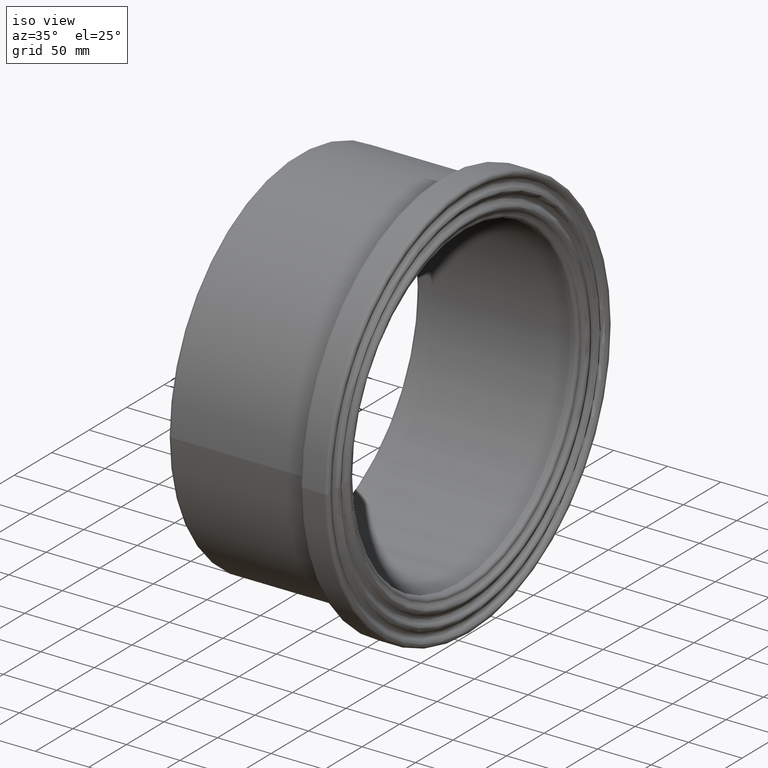
[diagram: clean part render]
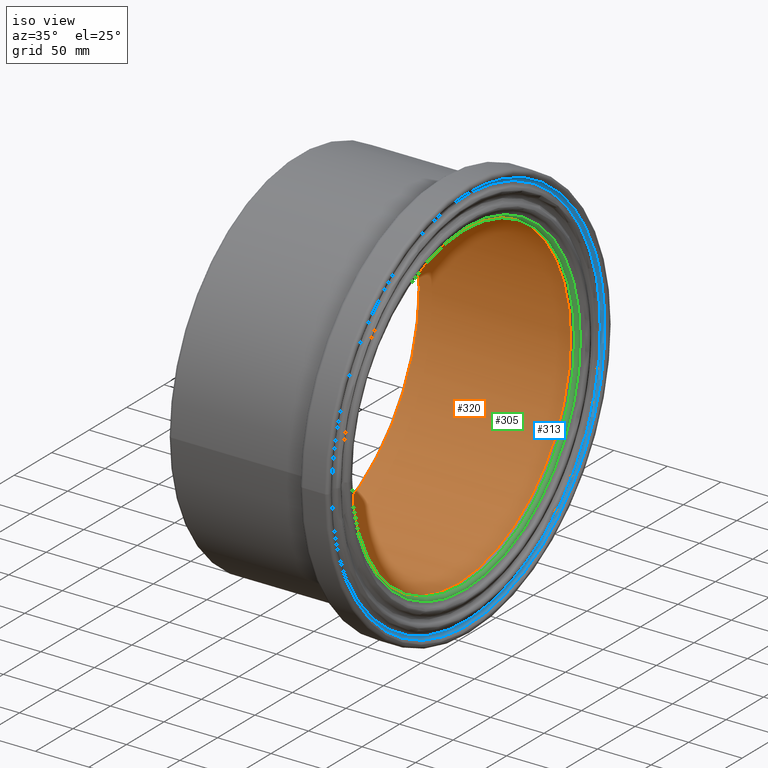
[diagram: same view with three faces highlighted in distinct colors, each labeled with its STEP entity id]
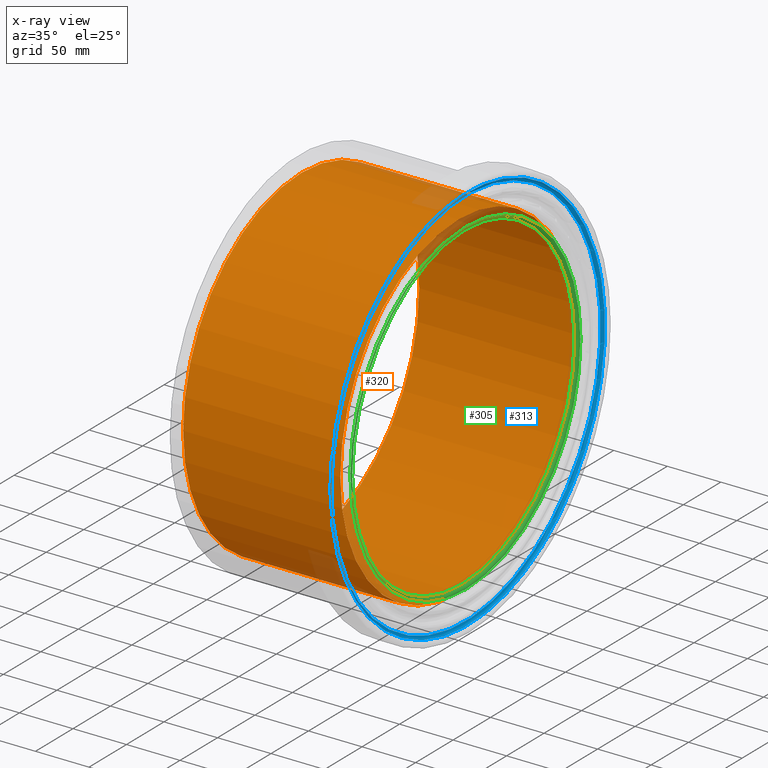
[diagram: x-ray of the same camera — body ghosted, the three highlighted faces saturated]
A machine part, iso view with three faces highlighted in distinct colors.
The next image is the same camera in x-ray (body ghosted, the three faces saturated) — at least one of them is partly hidden behind the body in this view.
Their STEP definitions:

[orange] entity #320 — the highlighted cylindrical surface (bore or boss wall) has radius 157.5 mm, axis along (-1, 0, 0).
#21=CYLINDRICAL_SURFACE('',#361,157.5);
#55=FACE_BOUND('',#122,.T.);
#81=FACE_OUTER_BOUND('',#121,.T.);
#121=EDGE_LOOP('',(#265));
#122=EDGE_LOOP('',(#266));
#157=CIRCLE('',#358,157.5);
#159=CIRCLE('',#362,157.5);
#184=VERTEX_POINT('',#1983);
#186=VERTEX_POINT('',#1989);
#215=EDGE_CURVE('',#184,#184,#157,.T.);
#217=EDGE_CURVE('',#186,#186,#159,.T.);
#265=ORIENTED_EDGE('',*,*,#217,.F.);
#266=ORIENTED_EDGE('',*,*,#215,.F.);
#320=ADVANCED_FACE('',(#81,#55),#21,.F.);
#358=AXIS2_PLACEMENT_3D('',#1984,#429,#430);
#361=AXIS2_PLACEMENT_3D('',#1988,#435,#436);
#362=AXIS2_PLACEMENT_3D('',#1990,#437,#438);
#429=DIRECTION('center_axis',(1.,0.,0.));
#430=DIRECTION('ref_axis',(0.,1.,6.12323399573677E-17));
#435=DIRECTION('center_axis',(-1.,0.,0.));
#436=DIRECTION('ref_axis',(0.,-1.,0.));
#437=DIRECTION('center_axis',(-1.,0.,0.));
#438=DIRECTION('ref_axis',(0.,0.,1.));
#1983=CARTESIAN_POINT('',(3.15,-157.5,-2.89322806298562E-14));
#1984=CARTESIAN_POINT('Origin',(3.15,0.,0.));
#1988=CARTESIAN_POINT('Origin',(75.,0.,0.));
#1989=CARTESIAN_POINT('',(150.,-157.5,0.));
#1990=CARTESIAN_POINT('Origin',(150.,0.,0.));

[blue] entity #313 — the highlighted toroidal blend (fillet) surface has major radius 179.704 mm and minor (blend) radius 3.15 mm.
#27=B_SPLINE_CURVE_WITH_KNOTS('',3,(#1371,#1372,#1373,#1374,#1375,#1376,
#1377,#1378,#1379,#1380,#1381,#1382,#1383,#1384,#1385,#1386,#1387,#1388,
#1389,#1390,#1391,#1392,#1393,#1394,#1395,#1396,#1397,#1398,#1399,#1400,
#1401,#1402,#1403,#1404,#1405,#1406,#1407,#1408,#1409,#1410,#1411,#1412,
#1413,#1414,#1415,#1416,#1417,#1418,#1419,#1420,#1421,#1422,#1423,#1424,
#1425,#1426,#1427,#1428,#1429,#1430,#1431,#1432,#1433,#1434,#1435,#1436,
#1437,#1438,#1439),.UNSPECIFIED.,.T.,.F.,(4,1,1,1,1,1,1,1,1,1,1,1,1,1,1,
1,1,1,1,1,1,1,1,1,1,1,1,1,1,1,1,1,1,1,1,1,1,1,1,1,1,1,1,1,1,1,1,1,1,1,1,
1,1,1,1,1,1,1,1,1,1,1,1,1,1,1,4),(-57.9542232891471,-55.8844296002489,-53.8146359113508,
-51.7448422224527,-49.6750485335546,-47.6052548446565,-45.5354611557584,
-43.4656674668603,-41.3958737779622,-38.6361488594314,-37.256286400166,
-35.8764239409006,-33.1166990223697,-30.3569741038389,-27.5972491853081,
-24.8375242667773,-22.0777993482465,-20.6979368889811,-19.3180744297157,
-16.5583495111849,-15.1784870519195,-13.7986245926541,-11.0388996741232,
-8.27917475559244,-5.51944983706162,-2.75972491853081,-1.37986245926541,
1.37986245926541,2.75972491853081,4.82951860742892,8.27917475559244,8.79662317781696,
10.3489684444905,12.4187621333887,14.4885558222868,14.747280033399,15.5234526667358,
16.5583495111849,20.6979368889811,20.9566611000934,21.7328337334301,22.7677305778792,
24.8375242667773,25.8724211112264,28.459663222349,28.9771116445735,31.0469053334716,
33.1166990223697,33.2891818297779,33.8066302520024,35.8764239409006,38.6361488594314,
40.3609769335131,41.3958737779622,41.9133222001867,43.4656674668603,44.2418401001971,
45.5354611557584,49.6750485335546,50.1924969557791,50.9686695891159,51.7448422224527,
53.8146359113508,55.8844296002489,57.4367748669225,57.8248611835909,57.9542232891471),
 .UNSPECIFIED.);
#49=FACE_BOUND('',#109,.T.);
#74=FACE_OUTER_BOUND('',#108,.T.);
#108=EDGE_LOOP('',(#249));
#109=EDGE_LOOP('',(#250));
#152=CIRCLE('',#349,179.704166666667);
#176=VERTEX_POINT('',#1369);
#178=VERTEX_POINT('',#1513);
#205=EDGE_CURVE('',#176,#176,#27,.T.);
#208=EDGE_CURVE('',#178,#178,#152,.T.);
#249=ORIENTED_EDGE('',*,*,#205,.F.);
#250=ORIENTED_EDGE('',*,*,#208,.T.);
#297=TOROIDAL_SURFACE('',#348,179.704166666667,3.15);
#313=ADVANCED_FACE('',(#74,#49),#297,.F.);
#348=AXIS2_PLACEMENT_3D('',#1512,#409,#410);
#349=AXIS2_PLACEMENT_3D('',#1514,#411,#412);
#409=DIRECTION('center_axis',(-1.,0.,0.));
#410=DIRECTION('ref_axis',(0.,0.,1.));
#411=DIRECTION('center_axis',(-1.,0.,0.));
#412=DIRECTION('ref_axis',(0.,1.,6.12323399573677E-17));
#1369=CARTESIAN_POINT('',(158.975,-182.646363265506,-0.148277646981388));
#1371=CARTESIAN_POINT('Ctrl Pts',(158.975,-182.646420829565,-0.150142079393005));
#1372=CARTESIAN_POINT('Ctrl Pts',(158.975,-182.652531576686,6.64632091384645));
#1373=CARTESIAN_POINT('Ctrl Pts',(158.975,-181.903941513344,20.2575136566611));
#1374=CARTESIAN_POINT('Ctrl Pts',(158.975,-178.48387979463,40.5700133823907));
#1375=CARTESIAN_POINT('Ctrl Pts',(158.975,-172.781844535511,60.3796458358005));
#1376=CARTESIAN_POINT('Ctrl Pts',(158.975,-164.984587012962,79.2373493955944));
#1377=CARTESIAN_POINT('Ctrl Pts',(158.975,-155.082768530979,97.2158005869448));
#1378=CARTESIAN_POINT('Ctrl Pts',(158.975,-143.147418610661,114.060155987901));
#1379=CARTESIAN_POINT('Ctrl Pts',(158.975,-129.491999298843,129.345819859714));
#1380=CARTESIAN_POINT('Ctrl Pts',(158.975,-112.582786412891,144.487400512383));
#1381=CARTESIAN_POINT('Ctrl Pts',(158.975,-95.521324484014,156.152002784864));
#1382=CARTESIAN_POINT('Ctrl Pts',(158.975,-79.3650152744306,164.689105372462));
#1383=CARTESIAN_POINT('Ctrl Pts',(158.975,-62.7440193576973,171.949021837176));
#1384=CARTESIAN_POINT('Ctrl Pts',(158.975,-40.954706080513,178.706036505378));
#1385=CARTESIAN_POINT('Ctrl Pts',(158.975,-13.6816229318022,182.817634841771));
#1386=CARTESIAN_POINT('Ctrl Pts',(158.975,13.5265563390263,182.819476714045));
#1387=CARTESIAN_POINT('Ctrl Pts',(158.975,40.7390035758414,178.758966159176));
#1388=CARTESIAN_POINT('Ctrl Pts',(158.975,62.6174506527248,171.994221476734));
#1389=CARTESIAN_POINT('Ctrl Pts',(158.975,79.2136346662028,164.762745087149));
#1390=CARTESIAN_POINT('Ctrl Pts',(158.975,95.3610610746418,156.244786101084));
#1391=CARTESIAN_POINT('Ctrl Pts',(158.975,110.520459225375,145.917208653634));
#1392=CARTESIAN_POINT('Ctrl Pts',(158.975,124.353293361133,134.00554796705));
#1393=CARTESIAN_POINT('Ctrl Pts',(158.975,137.156341469903,121.209207554159));
#1394=CARTESIAN_POINT('Ctrl Pts',(158.975,151.458439001939,103.314736348958));
#1395=CARTESIAN_POINT('Ctrl Pts',(158.975,165.194567861832,79.4873055626872));
#1396=CARTESIAN_POINT('Ctrl Pts',(158.975,175.144531428317,54.1508737039513));
#1397=CARTESIAN_POINT('Ctrl Pts',(158.975,180.277055807904,31.7603380658313));
#1398=CARTESIAN_POINT('Ctrl Pts',(158.975,182.813798700342,9.07044064965383));
#1399=CARTESIAN_POINT('Ctrl Pts',(158.975,182.817411748174,-9.07337493071986));
#1400=CARTESIAN_POINT('Ctrl Pts',(158.975,180.53345561862,-29.413646729624));
#1401=CARTESIAN_POINT('Ctrl Pts',(158.975,175.922109411444,-51.6100683929234));
#1402=CARTESIAN_POINT('Ctrl Pts',(158.975,169.004624700982,-70.3479059247484));
#1403=CARTESIAN_POINT('Ctrl Pts',(158.975,160.942296387414,-86.569986672021));
#1404=CARTESIAN_POINT('Ctrl Pts',(158.975,154.183098190943,-98.4709562608166));
#1405=CARTESIAN_POINT('Ctrl Pts',(158.975,143.277902037872,-113.896142693736));
#1406=CARTESIAN_POINT('Ctrl Pts',(158.975,133.582588883614,-124.774144283534));
#1407=CARTESIAN_POINT('Ctrl Pts',(158.975,126.314329887909,-131.961575772938));
#1408=CARTESIAN_POINT('Ctrl Pts',(158.975,121.35416370926,-136.598250364163));
#1409=CARTESIAN_POINT('Ctrl Pts',(158.975,106.416847282508,-149.269923678156));
#1410=CARTESIAN_POINT('Ctrl Pts',(158.975,91.0502035631779,-158.968566547915));
#1411=CARTESIAN_POINT('Ctrl Pts',(158.975,75.6082927619935,-166.289985885128));
#1412=CARTESIAN_POINT('Ctrl Pts',(158.975,69.3540217664295,-169.045927517638));
#1413=CARTESIAN_POINT('Ctrl Pts',(158.975,57.4679338225047,-173.603198884299));
#1414=CARTESIAN_POINT('Ctrl Pts',(158.975,44.3317780189964,-177.41629155026));
#1415=CARTESIAN_POINT('Ctrl Pts',(158.975,25.8443693505,-181.126424846863));
#1416=CARTESIAN_POINT('Ctrl Pts',(158.975,12.1576187732909,-182.489727954707));
#1417=CARTESIAN_POINT('Ctrl Pts',(158.975,-4.88558338719633,-182.746805209071));
#1418=CARTESIAN_POINT('Ctrl Pts',(158.975,-20.15664592807,-181.914950297632));
#1419=CARTESIAN_POINT('Ctrl Pts',(158.975,-34.2788541286663,-179.545236753741));
#1420=CARTESIAN_POINT('Ctrl Pts',(158.975,-43.1761941071095,-177.48127603563));
#1421=CARTESIAN_POINT('Ctrl Pts',(158.975,-52.0475573365175,-175.2516160001));
#1422=CARTESIAN_POINT('Ctrl Pts',(158.975,-68.8739165985218,-169.725621570418));
#1423=CARTESIAN_POINT('Ctrl Pts',(158.975,-88.2934252127541,-160.407681085464));
#1424=CARTESIAN_POINT('Ctrl Pts',(158.975,-103.739168325803,-150.542205797391));
#1425=CARTESIAN_POINT('Ctrl Pts',(158.975,-112.413209259645,-144.024655156208));
#1426=CARTESIAN_POINT('Ctrl Pts',(158.975,-120.364206694927,-137.515705917837));
#1427=CARTESIAN_POINT('Ctrl Pts',(158.975,-127.295992901674,-131.153173126707));
#1428=CARTESIAN_POINT('Ctrl Pts',(158.975,-135.529369265,-122.582176035383));
#1429=CARTESIAN_POINT('Ctrl Pts',(158.975,-148.865459451375,-107.07016139512));
#1430=CARTESIAN_POINT('Ctrl Pts',(158.975,-159.477544651721,-90.2338901257638));
#1431=CARTESIAN_POINT('Ctrl Pts',(158.975,-167.034318835411,-73.976919183321));
#1432=CARTESIAN_POINT('Ctrl Pts',(158.975,-169.692617240667,-67.7037470160829));
#1433=CARTESIAN_POINT('Ctrl Pts',(158.975,-173.864143720755,-56.5763370381404));
#1434=CARTESIAN_POINT('Ctrl Pts',(158.975,-178.394573062913,-40.9498773705393));
#1435=CARTESIAN_POINT('Ctrl Pts',(158.975,-181.576553397943,-22.322342514596));
#1436=CARTESIAN_POINT('Ctrl Pts',(158.975,-182.514416008302,-9.09207193159899));
#1437=CARTESIAN_POINT('Ctrl Pts',(158.975,-182.638567380796,-2.27389405574646));
#1438=CARTESIAN_POINT('Ctrl Pts',(158.975,-182.64603890787,-0.574921016470475));
#1439=CARTESIAN_POINT('Ctrl Pts',(158.975,-182.646420829565,-0.150142079393005));
#1512=CARTESIAN_POINT('Origin',(160.1,0.,0.));
#1513=CARTESIAN_POINT('',(156.95,-179.704166666667,1.10037066250888E-14));
#1514=CARTESIAN_POINT('Origin',(156.95,0.,0.));

[green] entity #305 — the highlighted toroidal blend (fillet) surface has major radius 152.775 mm and minor (blend) radius 3.15 mm.
#43=FACE_BOUND('',#95,.T.);
#66=FACE_OUTER_BOUND('',#94,.T.);
#94=EDGE_LOOP('',(#229));
#95=EDGE_LOOP('',(#230));
#145=CIRCLE('',#336,149.625);
#146=CIRCLE('',#337,152.775);
#168=VERTEX_POINT('',#477);
#169=VERTEX_POINT('',#479);
#196=EDGE_CURVE('',#168,#168,#145,.T.);
#197=EDGE_CURVE('',#169,#169,#146,.T.);
#229=ORIENTED_EDGE('',*,*,#196,.T.);
#230=ORIENTED_EDGE('',*,*,#197,.T.);
#295=TOROIDAL_SURFACE('',#335,152.775,3.15);
#305=ADVANCED_FACE('',(#66,#43),#295,.T.);
#335=AXIS2_PLACEMENT_3D('',#476,#383,#384);
#336=AXIS2_PLACEMENT_3D('',#478,#385,#386);
#337=AXIS2_PLACEMENT_3D('',#480,#387,#388);
#383=DIRECTION('center_axis',(-1.,0.,0.));
#384=DIRECTION('ref_axis',(0.,0.,1.));
#385=DIRECTION('center_axis',(-1.,0.,0.));
#386=DIRECTION('ref_axis',(0.,1.,6.12323399573677E-17));
#387=DIRECTION('center_axis',(1.,0.,0.));
#388=DIRECTION('ref_axis',(0.,1.,6.12323399573677E-17));
#476=CARTESIAN_POINT('Origin',(153.8,0.,0.));
#477=CARTESIAN_POINT('',(153.8,-149.625,9.16188886612114E-15));
#478=CARTESIAN_POINT('Origin',(153.8,0.,0.));
#479=CARTESIAN_POINT('',(156.95,-152.775,-2.80643122109605E-14));
#480=CARTESIAN_POINT('Origin',(156.95,0.,0.));